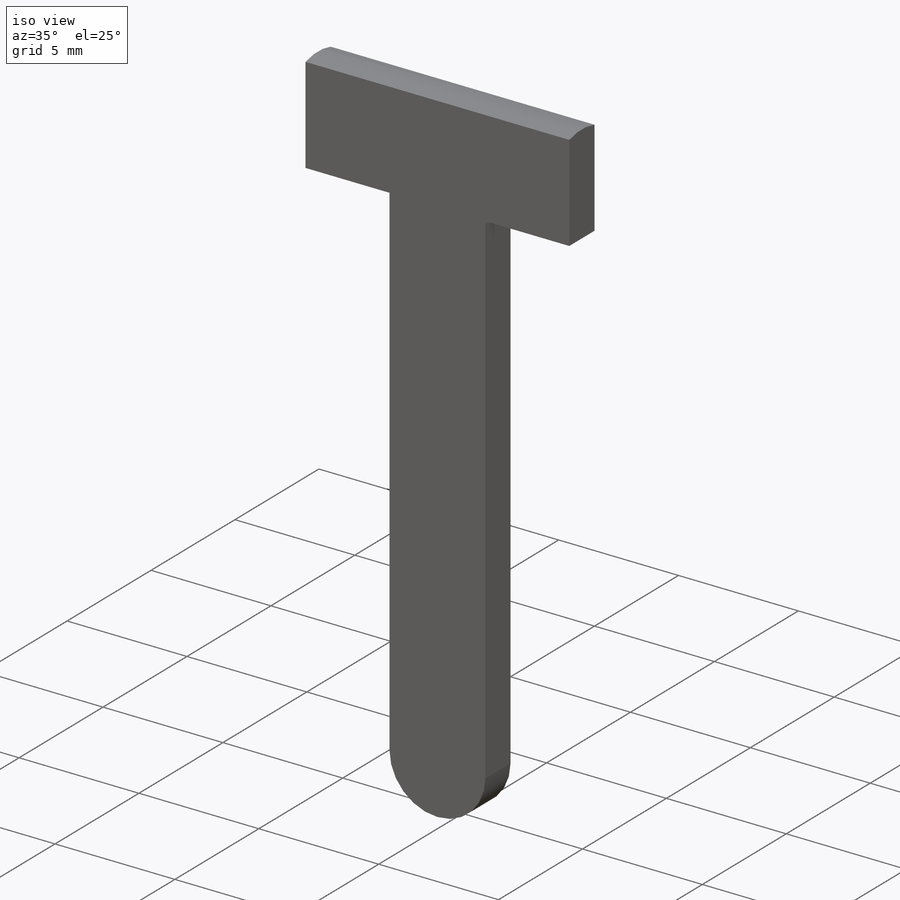
[diagram: iso view]
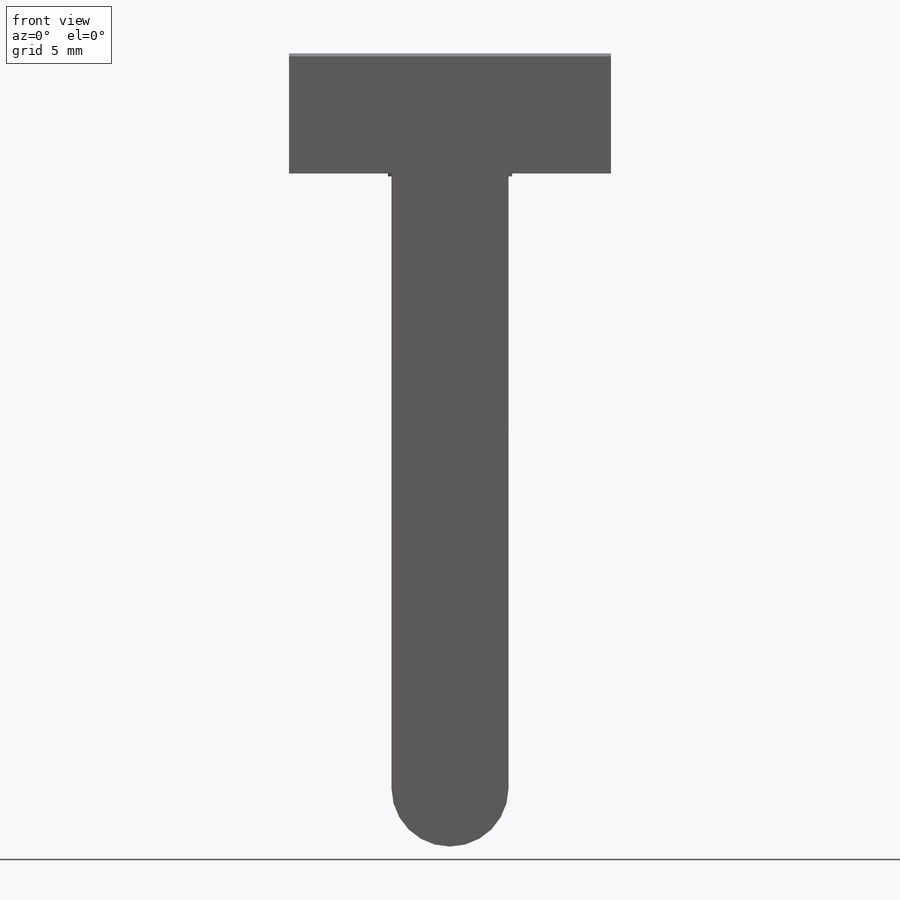
[diagram: front view]
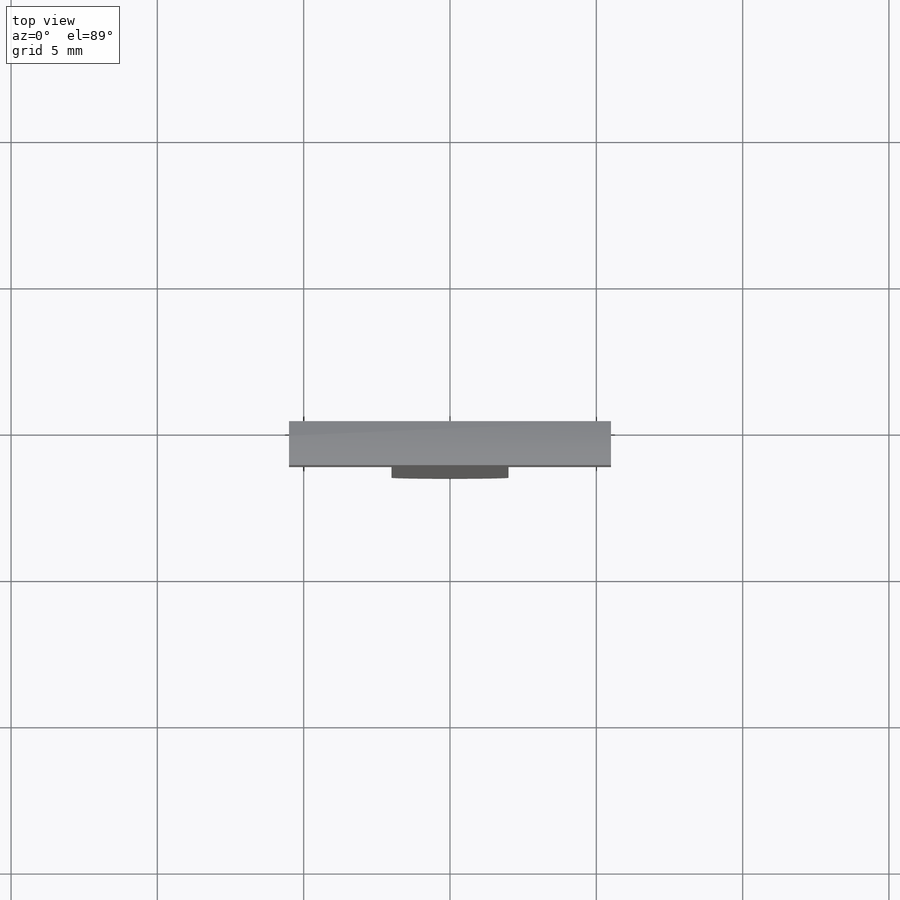
[diagram: top view]
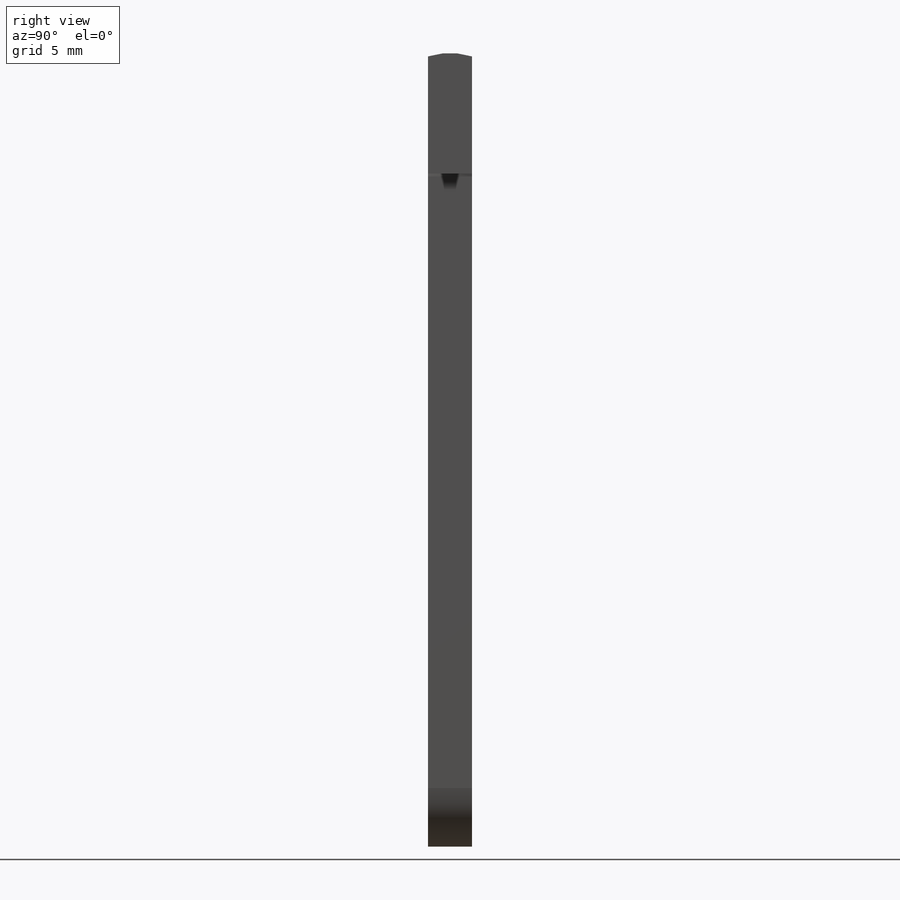
[diagram: right view]
SOLIDWORKS PART (.sldprt)
format: sldprt  version: not decoded by parser v0  size: 151,552 bytes
history: native  units: mm
features: plane x3, sketch x3, extrude x3, material x1 (+12 scaffold rows collapsed)
feature tree (22):
  scaffold x12  (default folders/planes/origin — collapsed)
  material  "Matériau <non spécifié>"
  plane  "Face"
  plane  "Dessus"
  plane  "Droite"
  sketch  "Esquisse1"  dims[c1.D5=2.0mm c1.D1=4.0mm c1.D2=11.0mm c1.D3=4.0mm c1.D4=3.5mm c2.D5=25.0mm c2.D6=11.0mm c2.D7=4.0mm]
  extrude  "Extrusion1"  Depth=1.5mm
  sketch  "Esquisse2"  dims[D1=2.0mm D2=0.75mm]
  extrude  "Extrusion2"  Depth=0.1mm
  sketch  "Esquisse3"  dims[D1=5.0mm]
  extrude  "Extrusion3"  [1 undecoded]
decode coverage: 5 of 6 modeling features carry decoded parameters
note: 1 parameter value undecoded
note: suppression state not decoded; provenance and decode notes live in map.json
